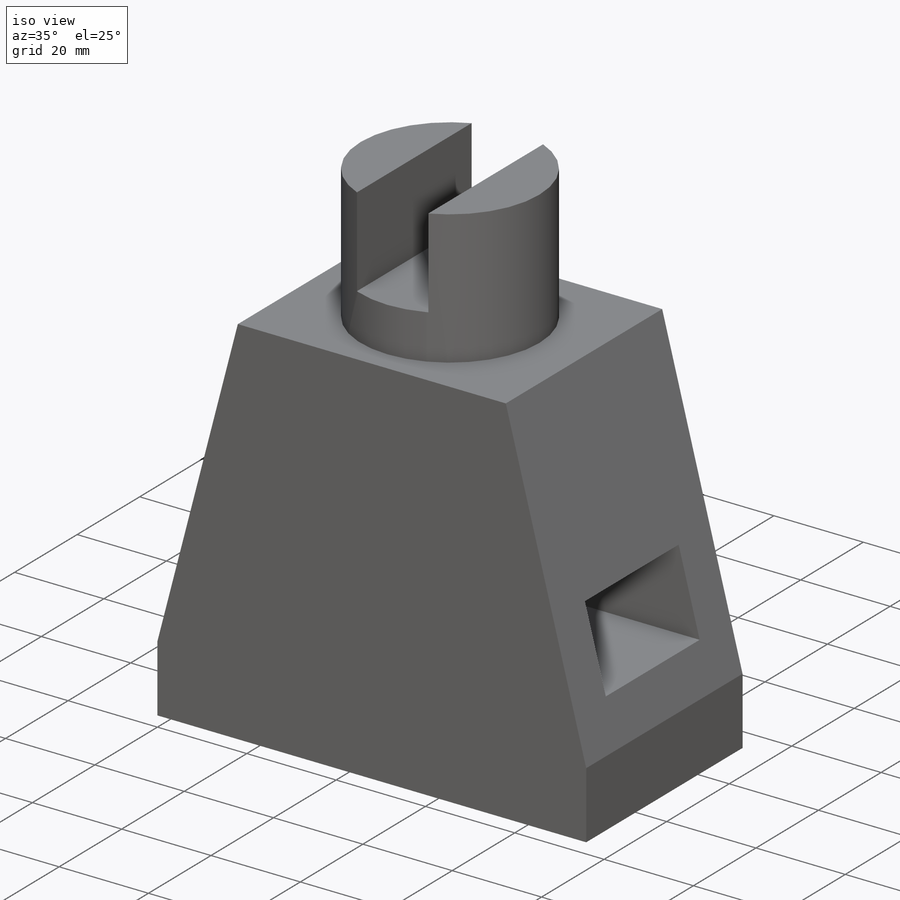
[diagram: iso view]
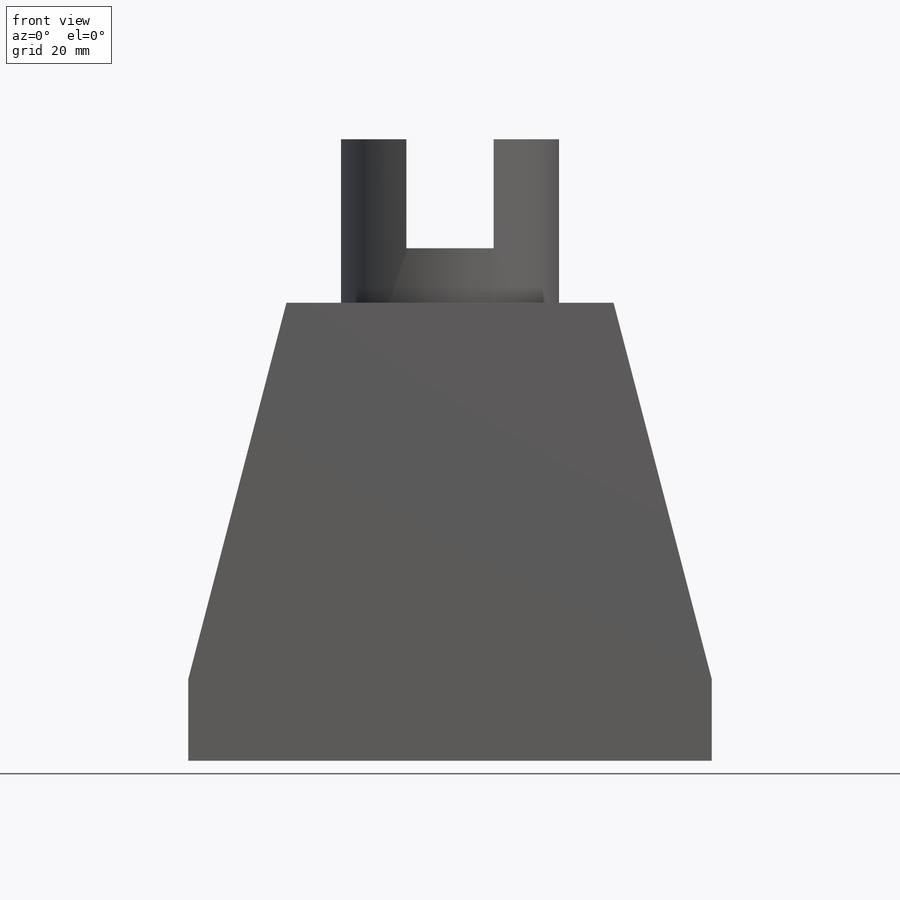
[diagram: front view]
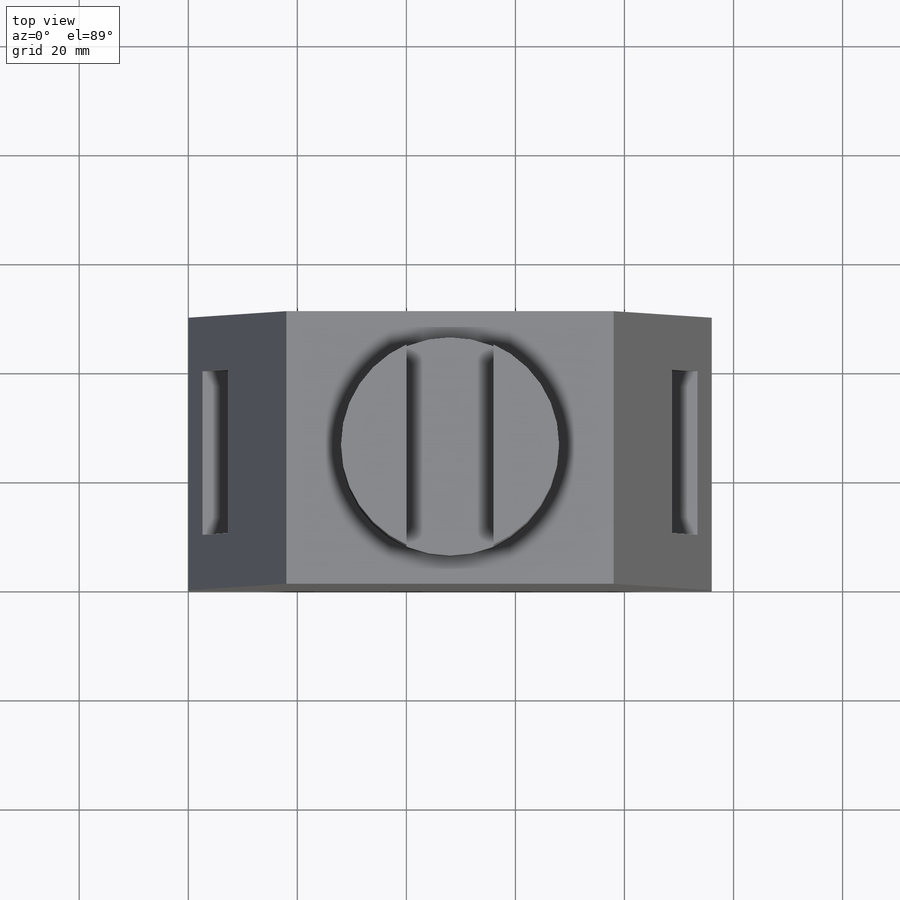
[diagram: top view]
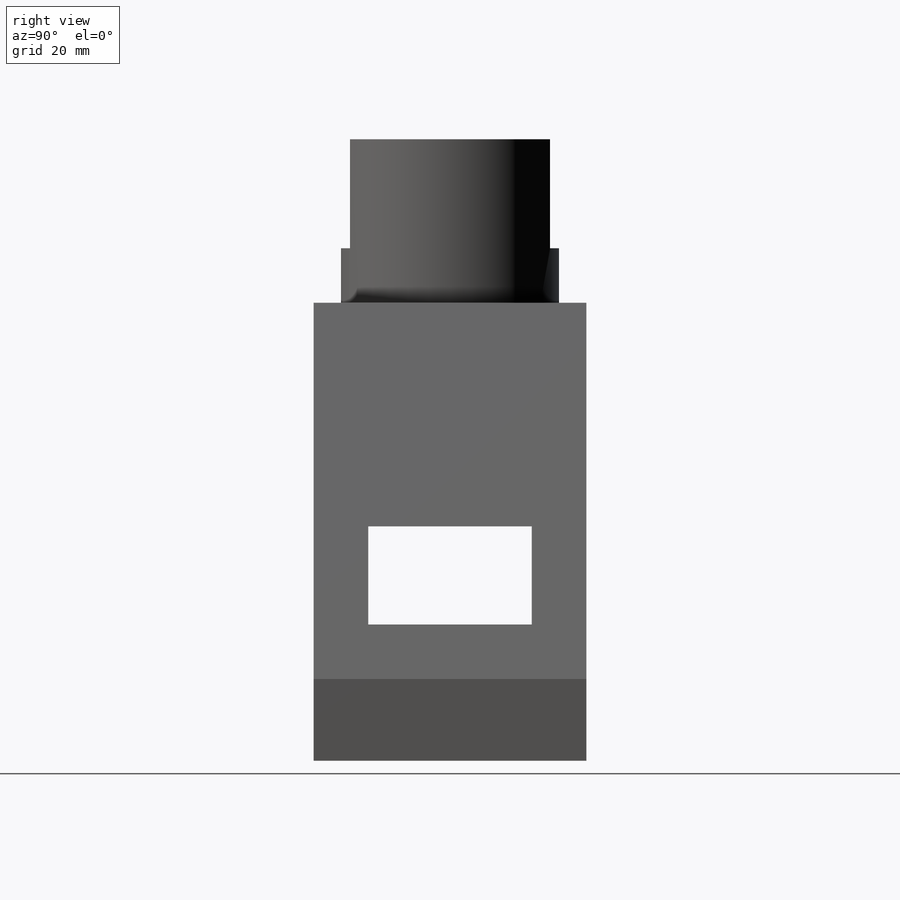
[diagram: right view]
SOLIDWORKS PART (.sldprt)
format: sldprt  version: not decoded by parser v0  size: 179,200 bytes
history: native  units: mm
features: sketch x5, cut_extrude x3, extrude x2, material x1, plane x1, mirror x1 (+13 scaffold rows collapsed)
feature tree (26):
  scaffold x13  (default folders/planes/origin — collapsed)
  material  "Material <not specified>"
  sketch  "Sketch1"  dims[D1=96.0mm D2=50.0mm]
  extrude  "Boss-Extrude1"  Depth=84mm
  sketch  "Sketch5"  dims[D1=30.0mm D2=25.0mm D3=10.0mm D4=18.0mm]
  cut_extrude  "Cut-Extrude2"  Depth=102mm
  plane  "Plane2"
  sketch  "Sketch2"  dims[D1=15.0mm D2=18.0mm]
  cut_extrude  "Cut-Extrude1"  [1 undecoded]
  mirror  "Mirror1"
  sketch  "Sketch6"  dims[c1.D1=40.0mm c1.D2=5.0mm c1.D3=5.0mm c2.D2=10.0mm c2.D3=10.0mm c3.D2=10.0mm]
  extrude  "Boss-Extrude2"  Depth=30mm
  sketch  "Sketch8"  dims[D1=16.0mm D2=~36.660606mm]
  cut_extrude  "Cut-Extrude3"  Depth=20mm
decode coverage: 9 of 11 modeling features carry decoded parameters
note: ~ marks probable driven/reference dimensions
note: 1 parameter value undecoded
note: suppression state not decoded; provenance and decode notes live in map.json
